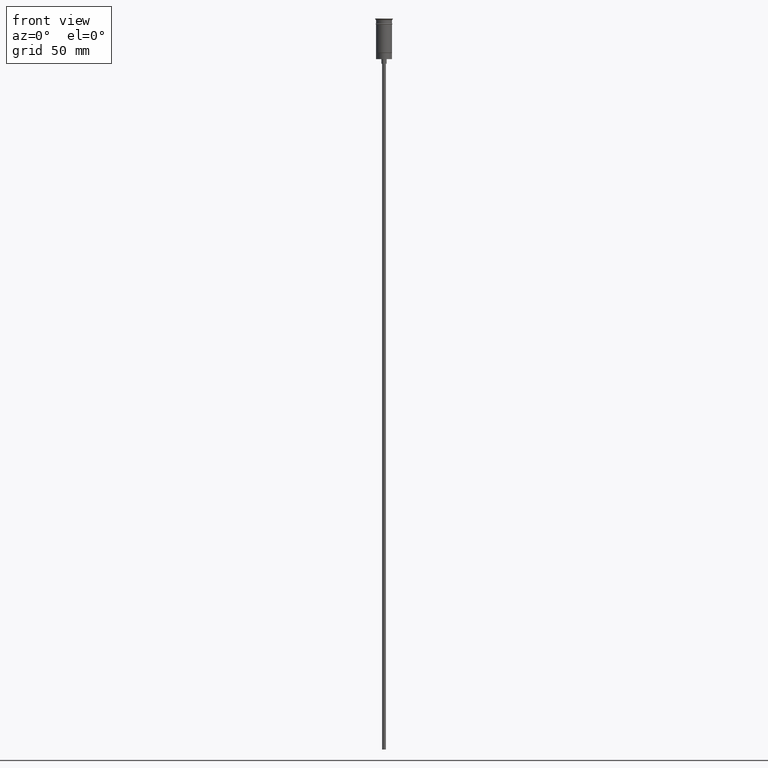
[diagram: clean part render]
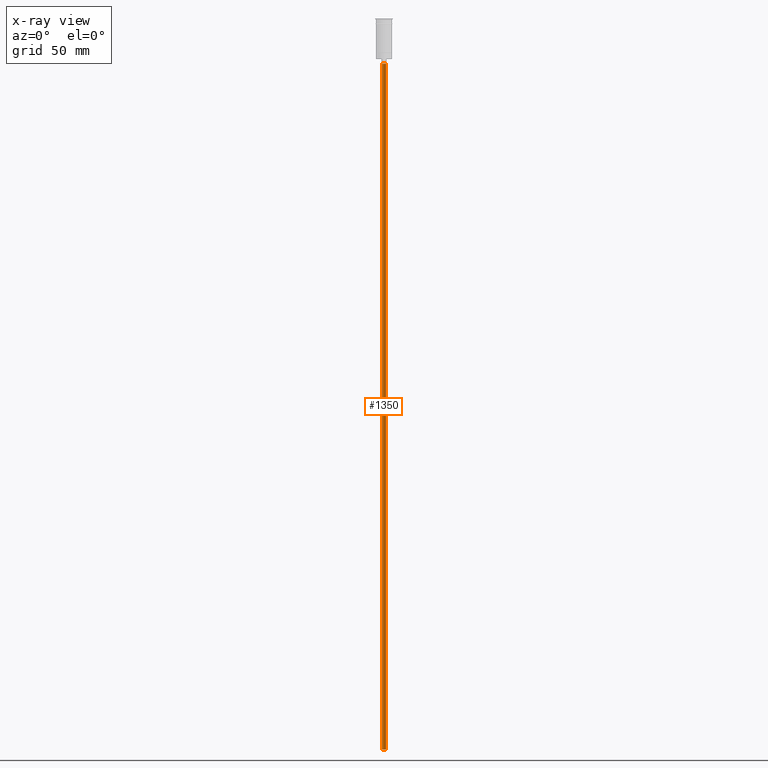
[diagram: x-ray — body ghosted, one internal face saturated and labeled with its STEP entity id]
A machine part, front view, then the same camera in x-ray: the body is ghosted and one INTERNAL B-rep face — a face not visible from any outside direction — is saturated and labeled: STEP entity #1350.
In plain terms, the highlighted cylindrical surface (edge-blend (fillet) strip) has radius 1.25 mm, axis along (-0, -0, 1).
Its self-contained STEP definition (entity closure, byte-faithful):
#19 = VERTEX_POINT ( 'NONE', #239 ) ;
#43 = CARTESIAN_POINT ( 'NONE',  ( -1.250000000000000000, 1.530808498934191571E-16, -476.5000000000000568 ) ) ;
#117 = CARTESIAN_POINT ( 'NONE',  ( 1.250000000000000000, 0.000000000000000000, -29.50000000000000000 ) ) ;
#118 = DIRECTION ( 'NONE',  ( 0.000000000000000000, 0.000000000000000000, -1.000000000000000000 ) ) ;
#132 = VERTEX_POINT ( 'NONE', #43 ) ;
#137 = EDGE_CURVE ( 'NONE', #19, #821, #519, .T. ) ;
#239 = CARTESIAN_POINT ( 'NONE',  ( -1.250000000000000000, 1.530808498934191571E-16, -29.50000000000000000 ) ) ;
#311 = AXIS2_PLACEMENT_3D ( 'NONE', #1599, #747, #495 ) ;
#339 = DIRECTION ( 'NONE',  ( -0.000000000000000000, -0.000000000000000000, 1.000000000000000000 ) ) ;
#375 = ORIENTED_EDGE ( 'NONE', *, *, #137, .T. ) ;
#413 = LINE ( 'NONE', #1390, #445 ) ;
#445 = VECTOR ( 'NONE', #538, 1000.000000000000000 ) ;
#484 = EDGE_CURVE ( 'NONE', #132, #827, #876, .T. ) ;
#495 = DIRECTION ( 'NONE',  ( 1.000000000000000000, 0.000000000000000000, 0.000000000000000000 ) ) ;
#517 = DIRECTION ( 'NONE',  ( -1.000000000000000000, 0.000000000000000000, 0.000000000000000000 ) ) ;
#519 = CIRCLE ( 'NONE', #1366, 1.250000000000000000 ) ;
#525 = ORIENTED_EDGE ( 'NONE', *, *, #1135, .F. ) ;
#538 = DIRECTION ( 'NONE',  ( -0.000000000000000000, -0.000000000000000000, 1.000000000000000000 ) ) ;
#621 = CARTESIAN_POINT ( 'NONE',  ( 1.250000000000000000, 0.000000000000000000, -476.5000000000000568 ) ) ;
#643 = CARTESIAN_POINT ( 'NONE',  ( 0.000000000000000000, 0.000000000000000000, -476.5000000000000568 ) ) ;
#656 = VECTOR ( 'NONE', #339, 1000.000000000000000 ) ;
#671 = ORIENTED_EDGE ( 'NONE', *, *, #484, .F. ) ;
#747 = DIRECTION ( 'NONE',  ( -0.000000000000000000, -0.000000000000000000, 1.000000000000000000 ) ) ;
#790 = DIRECTION ( 'NONE',  ( -1.000000000000000000, 0.000000000000000000, 0.000000000000000000 ) ) ;
#821 = VERTEX_POINT ( 'NONE', #117 ) ;
#827 = VERTEX_POINT ( 'NONE', #621 ) ;
#876 = CIRCLE ( 'NONE', #1211, 1.250000000000000000 ) ;
#903 = CARTESIAN_POINT ( 'NONE',  ( 0.000000000000000000, 0.000000000000000000, -29.50000000000000000 ) ) ;
#1098 = CARTESIAN_POINT ( 'NONE',  ( 1.250000000000000000, 0.000000000000000000, -476.5000000000000568 ) ) ;
#1106 = CYLINDRICAL_SURFACE ( 'NONE', #311, 1.250000000000000000 ) ;
#1135 = EDGE_CURVE ( 'NONE', #827, #821, #1176, .T. ) ;
#1175 = EDGE_LOOP ( 'NONE', ( #671, #1453, #375, #525 ) ) ;
#1176 = LINE ( 'NONE', #1098, #656 ) ;
#1211 = AXIS2_PLACEMENT_3D ( 'NONE', #643, #118, #517 ) ;
#1227 = FACE_OUTER_BOUND ( 'NONE', #1175, .T. ) ;
#1280 = DIRECTION ( 'NONE',  ( 0.000000000000000000, 0.000000000000000000, -1.000000000000000000 ) ) ;
#1350 = ADVANCED_FACE ( 'NONE', ( #1227 ), #1106, .T. ) ;
#1366 = AXIS2_PLACEMENT_3D ( 'NONE', #903, #1280, #790 ) ;
#1390 = CARTESIAN_POINT ( 'NONE',  ( -1.250000000000000000, 1.530808498934191571E-16, -476.5000000000000568 ) ) ;
#1448 = EDGE_CURVE ( 'NONE', #132, #19, #413, .T. ) ;
#1453 = ORIENTED_EDGE ( 'NONE', *, *, #1448, .T. ) ;
#1599 = CARTESIAN_POINT ( 'NONE',  ( 0.000000000000000000, 0.000000000000000000, -476.5000000000000568 ) ) ;